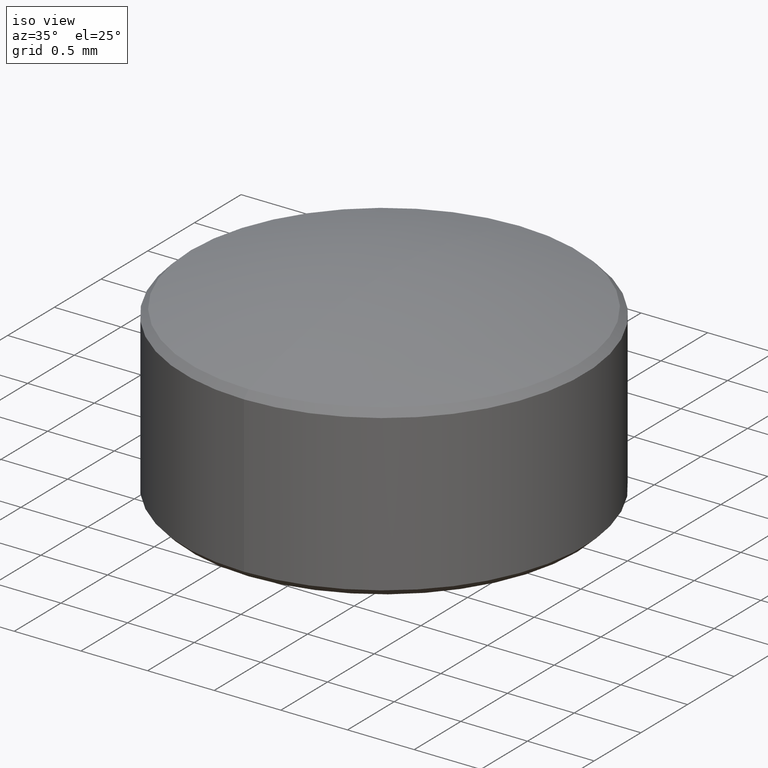
[diagram: clean part render]
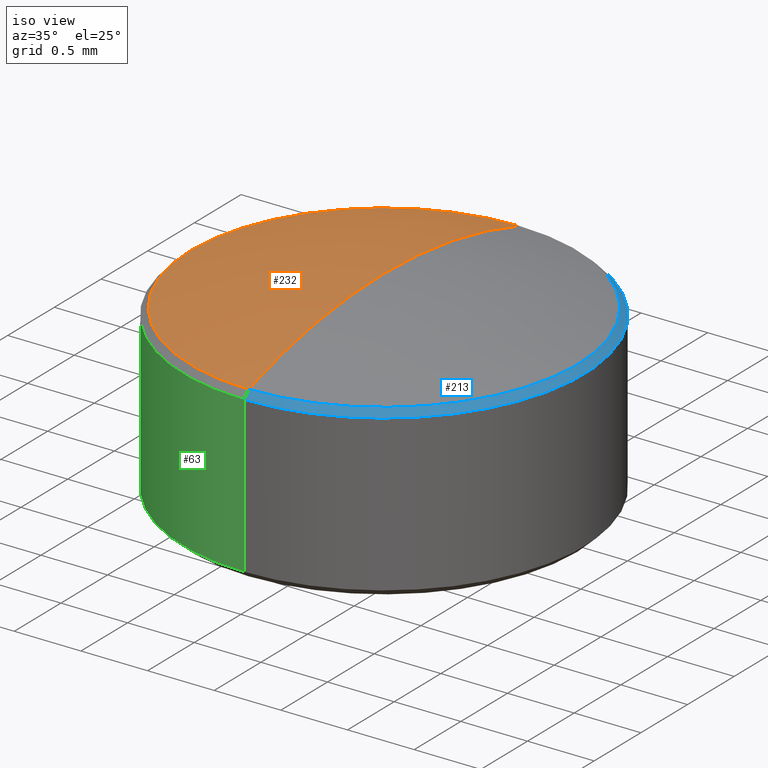
[diagram: same view with three faces highlighted in distinct colors, each labeled with its STEP entity id]
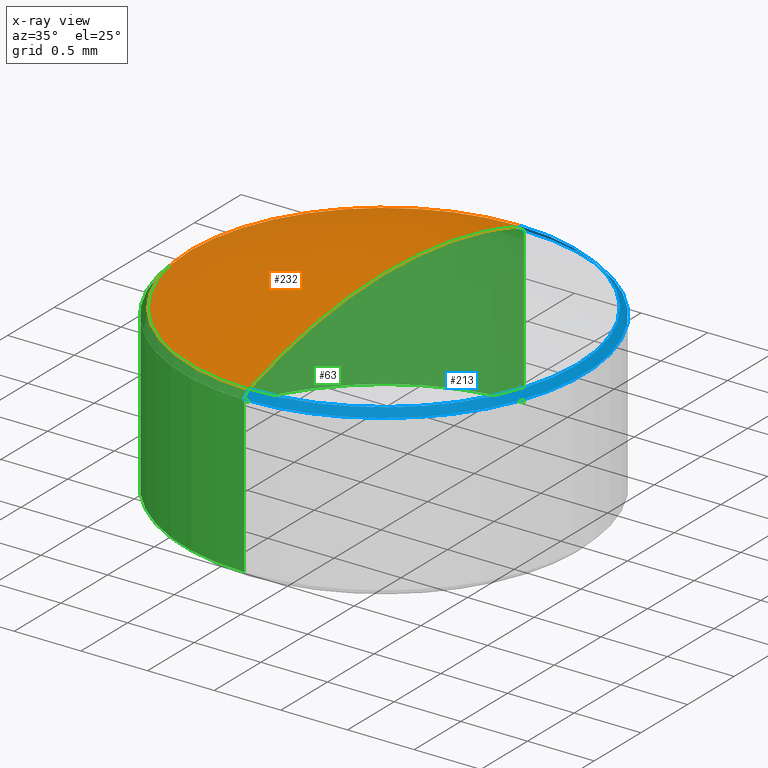
[diagram: x-ray of the same camera — body ghosted, the three highlighted faces saturated]
A machine part, iso view with three faces highlighted in distinct colors.
The next image is the same camera in x-ray (body ghosted, the three faces saturated) — at least one of them is partly hidden behind the body in this view.
Their STEP definitions:

[orange] entity #232 — the highlighted spherical surface has radius 4.651 mm.
#23 = DIRECTION ( 'NONE',  ( 0.0000000000000000000, 1.000000000000000000, 1.398669755947758989E-16 ) ) ;
#24 = FACE_OUTER_BOUND ( 'NONE', #100, .T. ) ;
#40 = SPHERICAL_SURFACE ( 'NONE', #148, 4.650999999999999801 ) ;
#41 = EDGE_CURVE ( 'NONE', #237, #281, #159, .T. ) ;
#43 = EDGE_CURVE ( 'NONE', #87, #281, #77, .T. ) ;
#44 = DIRECTION ( 'NONE',  ( 1.000000000000000000, 1.224646799147353207E-16, 1.499759782661857608E-32 ) ) ;
#53 = AXIS2_PLACEMENT_3D ( 'NONE', #257, #117, #262 ) ;
#57 = EDGE_CURVE ( 'NONE', #237, #87, #93, .T. ) ;
#65 = ORIENTED_EDGE ( 'NONE', *, *, #41, .T. ) ;
#72 = AXIS2_PLACEMENT_3D ( 'NONE', #263, #44, #140 ) ;
#77 = CIRCLE ( 'NONE', #53, 1.450000000000001066 ) ;
#87 = VERTEX_POINT ( 'NONE', #144 ) ;
#93 = CIRCLE ( 'NONE', #72, 4.650999999999999801 ) ;
#100 = EDGE_LOOP ( 'NONE', ( #226, #65, #169 ) ) ;
#117 = DIRECTION ( 'NONE',  ( -0.0000000000000000000, 1.224646799147353207E-16, -1.000000000000000000 ) ) ;
#122 = CARTESIAN_POINT ( 'NONE',  ( 0.8048939134659998107, 1.311868098657955839, -1.259704012957080899 ) ) ;
#140 = DIRECTION ( 'NONE',  ( -1.165558129956465865E-16, 1.000000000000000000, 0.0000000000000000000 ) ) ;
#143 = DIRECTION ( 'NONE',  ( 1.000000000000000000, 0.0000000000000000000, -0.0000000000000000000 ) ) ;
#144 = CARTESIAN_POINT ( 'NONE',  ( 0.8048939134660000327, -0.1381319013420453656, 3.159492859778958884 ) ) ;
#148 = AXIS2_PLACEMENT_3D ( 'NONE', #122, #143, #23 ) ;
#156 = DIRECTION ( 'NONE',  ( -1.000000000000000000, 0.0000000000000000000, 0.0000000000000000000 ) ) ;
#159 = CIRCLE ( 'NONE', #260, 4.650999999999999801 ) ;
#160 = DIRECTION ( 'NONE',  ( 0.0000000000000000000, 0.0000000000000000000, 1.000000000000000000 ) ) ;
#169 = ORIENTED_EDGE ( 'NONE', *, *, #43, .F. ) ;
#225 = CARTESIAN_POINT ( 'NONE',  ( 0.8048939134659998107, 1.311868098657955617, 3.391295987042918458 ) ) ;
#226 = ORIENTED_EDGE ( 'NONE', *, *, #57, .F. ) ;
#232 = ADVANCED_FACE ( 'NONE', ( #24 ), #40, .T. ) ;
#237 = VERTEX_POINT ( 'NONE', #225 ) ;
#252 = CARTESIAN_POINT ( 'NONE',  ( 0.8048939134659998107, 2.761868098657956683, 3.159492859778958884 ) ) ;
#257 = CARTESIAN_POINT ( 'NONE',  ( 0.8048939134659998107, 1.311868098657955617, 3.159492859778958884 ) ) ;
#260 = AXIS2_PLACEMENT_3D ( 'NONE', #291, #156, #160 ) ;
#262 = DIRECTION ( 'NONE',  ( 0.0000000000000000000, 1.000000000000000000, 0.0000000000000000000 ) ) ;
#263 = CARTESIAN_POINT ( 'NONE',  ( 0.8048939134659998107, 1.311868098657955839, -1.259704012957080899 ) ) ;
#281 = VERTEX_POINT ( 'NONE', #252 ) ;
#291 = CARTESIAN_POINT ( 'NONE',  ( 0.8048939134659998107, 1.311868098657955839, -1.259704012957080899 ) ) ;

[blue] entity #213 — the highlighted conical surface has half-angle 45 deg.
#3 = EDGE_LOOP ( 'NONE', ( #36, #68, #186, #115 ) ) ;
#6 = CIRCLE ( 'NONE', #25, 1.499999999999999778 ) ;
#25 = AXIS2_PLACEMENT_3D ( 'NONE', #222, #121, #185 ) ;
#36 = ORIENTED_EDGE ( 'NONE', *, *, #292, .T. ) ;
#59 = DIRECTION ( 'NONE',  ( 0.0000000000000000000, 1.000000000000000000, 0.0000000000000000000 ) ) ;
#62 = DIRECTION ( 'NONE',  ( -0.0000000000000000000, 1.224646799147353207E-16, -1.000000000000000000 ) ) ;
#68 = ORIENTED_EDGE ( 'NONE', *, *, #192, .T. ) ;
#87 = VERTEX_POINT ( 'NONE', #144 ) ;
#94 = DIRECTION ( 'NONE',  ( 0.0000000000000000000, 1.000000000000000000, 0.0000000000000000000 ) ) ;
#96 = CARTESIAN_POINT ( 'NONE',  ( 0.8048939134660000327, -0.1881319013420444108, 3.109492859778959950 ) ) ;
#103 = VECTOR ( 'NONE', #241, 1000.000000000000000 ) ;
#105 = DIRECTION ( 'NONE',  ( 0.0000000000000000000, 0.7071067811865476838, -0.7071067811865474617 ) ) ;
#115 = ORIENTED_EDGE ( 'NONE', *, *, #271, .F. ) ;
#121 = DIRECTION ( 'NONE',  ( -0.0000000000000000000, 1.224646799147353207E-16, -1.000000000000000000 ) ) ;
#130 = FACE_OUTER_BOUND ( 'NONE', #3, .T. ) ;
#144 = CARTESIAN_POINT ( 'NONE',  ( 0.8048939134660000327, -0.1381319013420453656, 3.159492859778958884 ) ) ;
#164 = VECTOR ( 'NONE', #105, 1000.000000000000000 ) ;
#165 = CARTESIAN_POINT ( 'NONE',  ( 0.8048939134659998107, 1.311868098657955617, 3.109492859778959950 ) ) ;
#185 = DIRECTION ( 'NONE',  ( 0.0000000000000000000, 1.000000000000000000, 0.0000000000000000000 ) ) ;
#186 = ORIENTED_EDGE ( 'NONE', *, *, #230, .F. ) ;
#192 = EDGE_CURVE ( 'NONE', #87, #227, #279, .T. ) ;
#202 = CARTESIAN_POINT ( 'NONE',  ( 0.8048939134659998107, 2.811868098657955617, 3.109492859778959950 ) ) ;
#203 = LINE ( 'NONE', #221, #164 ) ;
#213 = ADVANCED_FACE ( 'NONE', ( #130 ), #286, .T. ) ;
#215 = VERTEX_POINT ( 'NONE', #202 ) ;
#221 = CARTESIAN_POINT ( 'NONE',  ( 0.8048939134659998107, 2.811868098657955617, 3.109492859778959950 ) ) ;
#222 = CARTESIAN_POINT ( 'NONE',  ( 0.8048939134659998107, 1.311868098657955617, 3.109492859778959950 ) ) ;
#227 = VERTEX_POINT ( 'NONE', #242 ) ;
#230 = EDGE_CURVE ( 'NONE', #215, #227, #6, .T. ) ;
#241 = DIRECTION ( 'NONE',  ( 8.659560562354934091E-17, -0.7071067811865474617, -0.7071067811865476838 ) ) ;
#242 = CARTESIAN_POINT ( 'NONE',  ( 0.8048939134660000327, -0.1881319013420444108, 3.109492859778959950 ) ) ;
#252 = CARTESIAN_POINT ( 'NONE',  ( 0.8048939134659998107, 2.761868098657956683, 3.159492859778958884 ) ) ;
#256 = CIRCLE ( 'NONE', #290, 1.450000000000001066 ) ;
#264 = DIRECTION ( 'NONE',  ( -0.0000000000000000000, 1.224646799147353207E-16, -1.000000000000000000 ) ) ;
#271 = EDGE_CURVE ( 'NONE', #281, #215, #203, .T. ) ;
#272 = AXIS2_PLACEMENT_3D ( 'NONE', #165, #264, #94 ) ;
#279 = LINE ( 'NONE', #96, #103 ) ;
#281 = VERTEX_POINT ( 'NONE', #252 ) ;
#283 = CARTESIAN_POINT ( 'NONE',  ( 0.8048939134659998107, 1.311868098657955617, 3.159492859778958884 ) ) ;
#286 = CONICAL_SURFACE ( 'NONE', #272, 1.499999999999999778, 0.7853981633974482790 ) ;
#290 = AXIS2_PLACEMENT_3D ( 'NONE', #283, #62, #59 ) ;
#292 = EDGE_CURVE ( 'NONE', #281, #87, #256, .T. ) ;

[green] entity #63 — the highlighted cylindrical surface (partial cylindrical patch) has radius 1.5 mm, axis along (-0, 0, -1).
#9 = VERTEX_POINT ( 'NONE', #236 ) ;
#10 = EDGE_CURVE ( 'NONE', #215, #9, #269, .T. ) ;
#15 = FACE_OUTER_BOUND ( 'NONE', #209, .T. ) ;
#19 = DIRECTION ( 'NONE',  ( 0.0000000000000000000, 1.000000000000000000, 0.0000000000000000000 ) ) ;
#22 = LINE ( 'NONE', #88, #208 ) ;
#26 = DIRECTION ( 'NONE',  ( 0.0000000000000000000, -1.224646799147353207E-16, 1.000000000000000000 ) ) ;
#33 = VECTOR ( 'NONE', #66, 1000.000000000000000 ) ;
#35 = EDGE_CURVE ( 'NONE', #227, #235, #22, .T. ) ;
#45 = DIRECTION ( 'NONE',  ( -0.0000000000000000000, 1.224646799147353207E-16, -1.000000000000000000 ) ) ;
#63 = ADVANCED_FACE ( 'NONE', ( #15 ), #78, .T. ) ;
#66 = DIRECTION ( 'NONE',  ( -0.0000000000000000000, 1.224646799147353207E-16, -1.000000000000000000 ) ) ;
#70 = CARTESIAN_POINT ( 'NONE',  ( 0.8048939134660000327, -0.1881319013420442166, 1.941295987042919613 ) ) ;
#71 = EDGE_CURVE ( 'NONE', #227, #215, #198, .T. ) ;
#73 = CIRCLE ( 'NONE', #248, 1.500000000000000000 ) ;
#78 = CYLINDRICAL_SURFACE ( 'NONE', #179, 1.500000000000000000 ) ;
#80 = AXIS2_PLACEMENT_3D ( 'NONE', #162, #200, #19 ) ;
#88 = CARTESIAN_POINT ( 'NONE',  ( 0.8048939134660000327, -0.1881319013420442166, 1.891295987042918680 ) ) ;
#97 = DIRECTION ( 'NONE',  ( 0.0000000000000000000, 1.000000000000000000, 1.445602896647339163E-16 ) ) ;
#119 = DIRECTION ( 'NONE',  ( 0.0000000000000000000, 1.000000000000000000, 1.445602896647339163E-16 ) ) ;
#127 = ORIENTED_EDGE ( 'NONE', *, *, #10, .T. ) ;
#162 = CARTESIAN_POINT ( 'NONE',  ( 0.8048939134659998107, 1.311868098657955617, 3.109492859778959950 ) ) ;
#166 = ORIENTED_EDGE ( 'NONE', *, *, #71, .T. ) ;
#168 = CARTESIAN_POINT ( 'NONE',  ( 0.8048939134659998107, 1.311868098657955839, 1.941295987042919835 ) ) ;
#171 = ORIENTED_EDGE ( 'NONE', *, *, #219, .T. ) ;
#179 = AXIS2_PLACEMENT_3D ( 'NONE', #218, #181, #119 ) ;
#181 = DIRECTION ( 'NONE',  ( -0.0000000000000000000, 1.224646799147353207E-16, -1.000000000000000000 ) ) ;
#197 = CARTESIAN_POINT ( 'NONE',  ( 0.8048939134659998107, 2.811868098657956061, 1.891295987042919124 ) ) ;
#198 = CIRCLE ( 'NONE', #80, 1.499999999999999778 ) ;
#200 = DIRECTION ( 'NONE',  ( -0.0000000000000000000, 1.224646799147353207E-16, -1.000000000000000000 ) ) ;
#202 = CARTESIAN_POINT ( 'NONE',  ( 0.8048939134659998107, 2.811868098657955617, 3.109492859778959950 ) ) ;
#208 = VECTOR ( 'NONE', #45, 1000.000000000000000 ) ;
#209 = EDGE_LOOP ( 'NONE', ( #224, #166, #127, #171 ) ) ;
#215 = VERTEX_POINT ( 'NONE', #202 ) ;
#218 = CARTESIAN_POINT ( 'NONE',  ( 0.8048939134659998107, 1.311868098657955839, 1.891295987042918902 ) ) ;
#219 = EDGE_CURVE ( 'NONE', #9, #235, #73, .T. ) ;
#224 = ORIENTED_EDGE ( 'NONE', *, *, #35, .F. ) ;
#227 = VERTEX_POINT ( 'NONE', #242 ) ;
#235 = VERTEX_POINT ( 'NONE', #70 ) ;
#236 = CARTESIAN_POINT ( 'NONE',  ( 0.8048939134659998107, 2.811868098657956061, 1.941295987042920057 ) ) ;
#242 = CARTESIAN_POINT ( 'NONE',  ( 0.8048939134660000327, -0.1881319013420444108, 3.109492859778959950 ) ) ;
#248 = AXIS2_PLACEMENT_3D ( 'NONE', #168, #26, #97 ) ;
#269 = LINE ( 'NONE', #197, #33 ) ;